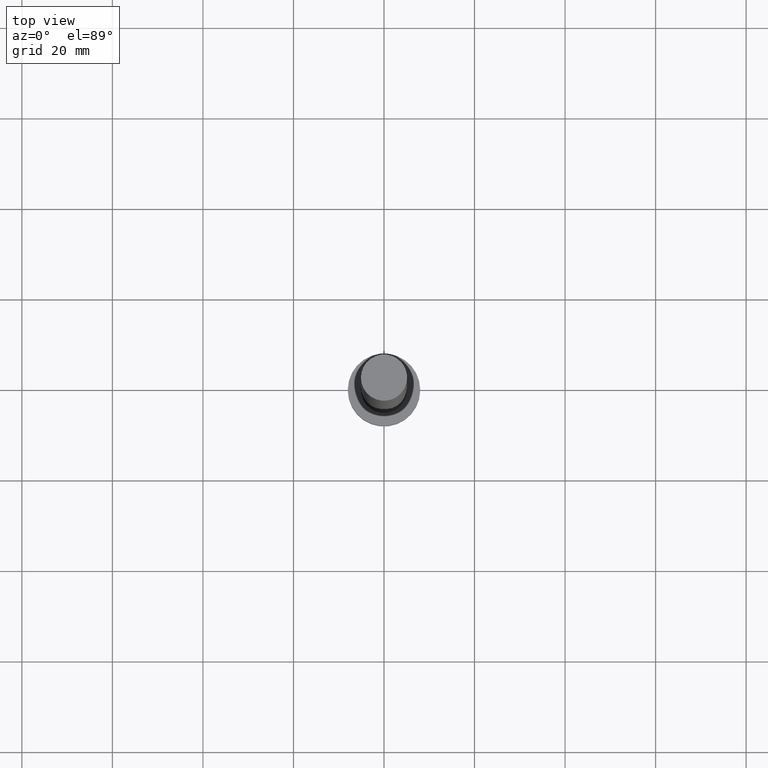
[diagram: clean part render]
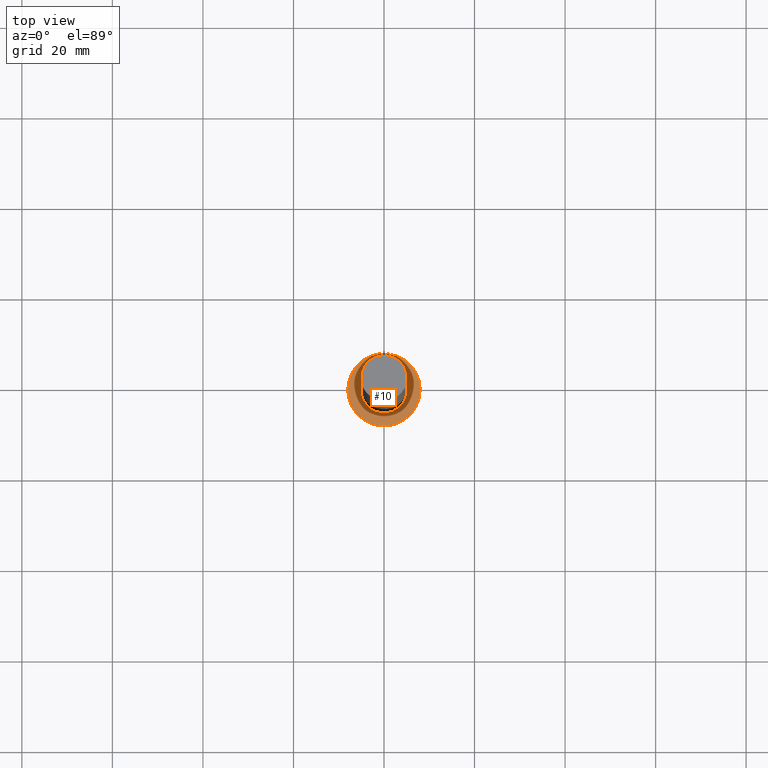
[diagram: same view with one face highlighted and labeled with its STEP entity id]
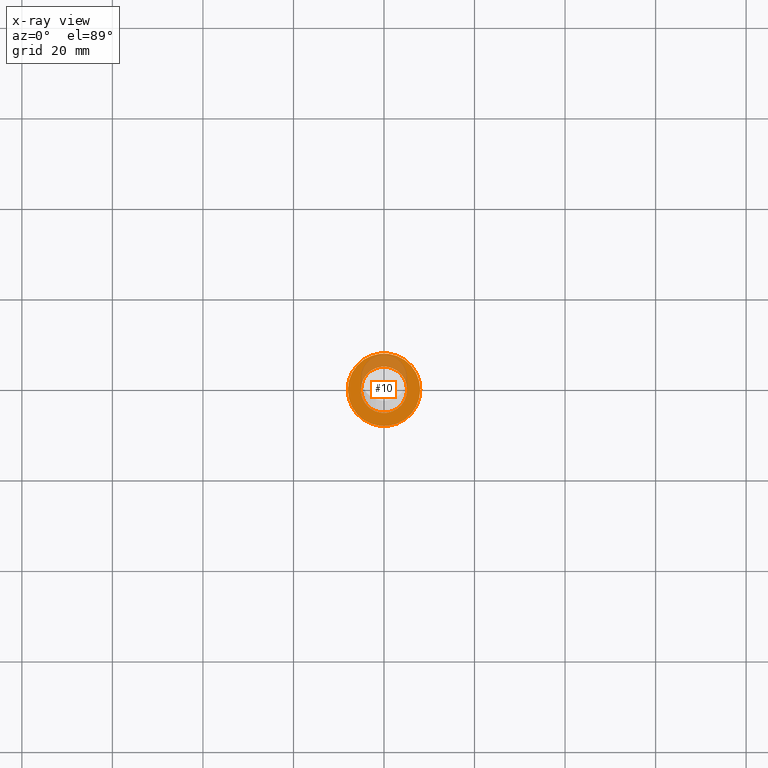
[diagram: x-ray of the same camera — body ghosted, the highlighted face saturated]
A machine part, top view. The second image highlights one B-rep face of the part: STEP entity #10.
The next image is the same camera in x-ray: the body ghosted, the highlighted face saturated — about 23% of this face is hidden behind the body in this view.
In plain terms, the highlighted planar face has unit normal (0, 0, 1).
Its self-contained STEP definition (entity closure, byte-faithful):
#9 = ORIENTED_EDGE ( 'NONE', *, *, #83, .F. ) ;
#10 = ADVANCED_FACE ( 'NONE', ( #141, #214 ), #89, .T. ) ;
#15 = CIRCLE ( 'NONE', #144, 8.000000000000000000 ) ;
#21 = CARTESIAN_POINT ( 'NONE',  ( 0.000000000000000000, 0.000000000000000000, 6.500000000000000000 ) ) ;
#28 = CIRCLE ( 'NONE', #62, 8.000000000000000000 ) ;
#29 = DIRECTION ( 'NONE',  ( 0.000000000000000000, 0.000000000000000000, 1.000000000000000000 ) ) ;
#39 = DIRECTION ( 'NONE',  ( 0.000000000000000000, 0.000000000000000000, 1.000000000000000000 ) ) ;
#42 = DIRECTION ( 'NONE',  ( 1.000000000000000000, 0.000000000000000000, 0.000000000000000000 ) ) ;
#46 = CARTESIAN_POINT ( 'NONE',  ( 0.000000000000000000, 0.000000000000000000, 6.500000000000000000 ) ) ;
#50 = EDGE_CURVE ( 'NONE', #111, #238, #15, .T. ) ;
#59 = VERTEX_POINT ( 'NONE', #196 ) ;
#61 = AXIS2_PLACEMENT_3D ( 'NONE', #179, #29, #120 ) ;
#62 = AXIS2_PLACEMENT_3D ( 'NONE', #177, #73, #42 ) ;
#63 = ORIENTED_EDGE ( 'NONE', *, *, #147, .T. ) ;
#66 = DIRECTION ( 'NONE',  ( 1.000000000000000000, 0.000000000000000000, 0.000000000000000000 ) ) ;
#68 = DIRECTION ( 'NONE',  ( 0.000000000000000000, 0.000000000000000000, 1.000000000000000000 ) ) ;
#73 = DIRECTION ( 'NONE',  ( 0.000000000000000000, 0.000000000000000000, 1.000000000000000000 ) ) ;
#83 = EDGE_CURVE ( 'NONE', #149, #59, #119, .T. ) ;
#89 = PLANE ( 'NONE',  #61 ) ;
#106 = CIRCLE ( 'NONE', #202, 5.100000000000001421 ) ;
#111 = VERTEX_POINT ( 'NONE', #113 ) ;
#113 = CARTESIAN_POINT ( 'NONE',  ( 8.000000000000000000, 9.797174393178823685E-16, 6.500000000000000000 ) ) ;
#115 = DIRECTION ( 'NONE',  ( 0.000000000000000000, 0.000000000000000000, 1.000000000000000000 ) ) ;
#119 = CIRCLE ( 'NONE', #254, 5.100000000000001421 ) ;
#120 = DIRECTION ( 'NONE',  ( 1.000000000000000000, 0.000000000000000000, -0.000000000000000000 ) ) ;
#141 = FACE_BOUND ( 'NONE', #239, .T. ) ;
#144 = AXIS2_PLACEMENT_3D ( 'NONE', #197, #39, #66 ) ;
#147 = EDGE_CURVE ( 'NONE', #238, #111, #28, .T. ) ;
#149 = VERTEX_POINT ( 'NONE', #169 ) ;
#154 = EDGE_CURVE ( 'NONE', #59, #149, #106, .T. ) ;
#169 = CARTESIAN_POINT ( 'NONE',  ( 5.100000000000001421, 6.245698675651502811E-16, 6.500000000000000000 ) ) ;
#172 = DIRECTION ( 'NONE',  ( 1.000000000000000000, 0.000000000000000000, 0.000000000000000000 ) ) ;
#177 = CARTESIAN_POINT ( 'NONE',  ( 0.000000000000000000, 0.000000000000000000, 6.500000000000000000 ) ) ;
#179 = CARTESIAN_POINT ( 'NONE',  ( 0.000000000000000000, 0.000000000000000000, 6.500000000000000000 ) ) ;
#196 = CARTESIAN_POINT ( 'NONE',  ( -5.100000000000001421, 0.000000000000000000, 6.500000000000000000 ) ) ;
#197 = CARTESIAN_POINT ( 'NONE',  ( 0.000000000000000000, 0.000000000000000000, 6.500000000000000000 ) ) ;
#202 = AXIS2_PLACEMENT_3D ( 'NONE', #46, #115, #247 ) ;
#204 = ORIENTED_EDGE ( 'NONE', *, *, #50, .T. ) ;
#214 = FACE_OUTER_BOUND ( 'NONE', #242, .T. ) ;
#223 = ORIENTED_EDGE ( 'NONE', *, *, #154, .F. ) ;
#236 = CARTESIAN_POINT ( 'NONE',  ( -8.000000000000000000, 0.000000000000000000, 6.500000000000000000 ) ) ;
#238 = VERTEX_POINT ( 'NONE', #236 ) ;
#239 = EDGE_LOOP ( 'NONE', ( #223, #9 ) ) ;
#242 = EDGE_LOOP ( 'NONE', ( #63, #204 ) ) ;
#247 = DIRECTION ( 'NONE',  ( 1.000000000000000000, 0.000000000000000000, 0.000000000000000000 ) ) ;
#254 = AXIS2_PLACEMENT_3D ( 'NONE', #21, #68, #172 ) ;